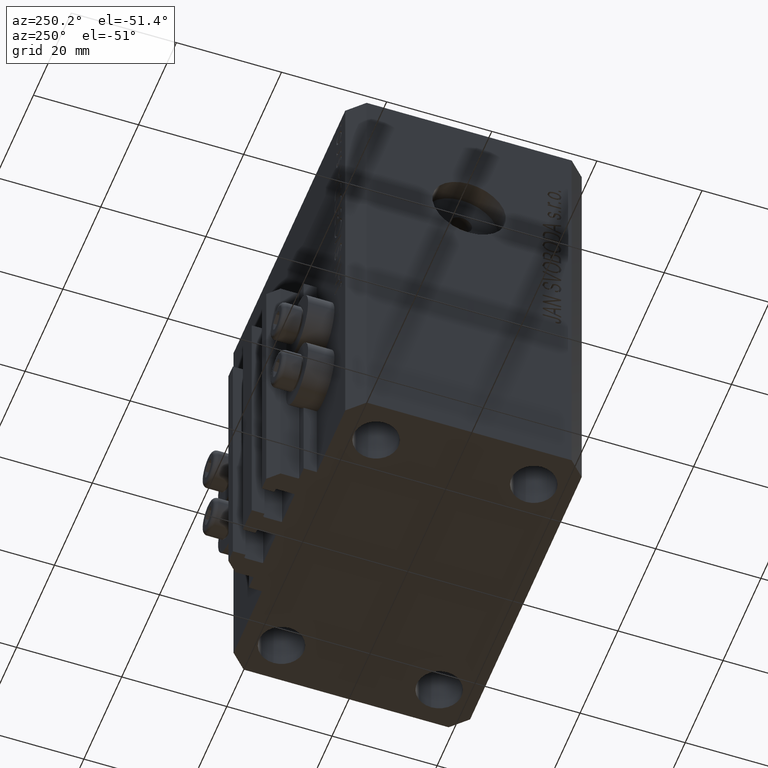
[diagram: clean part render]
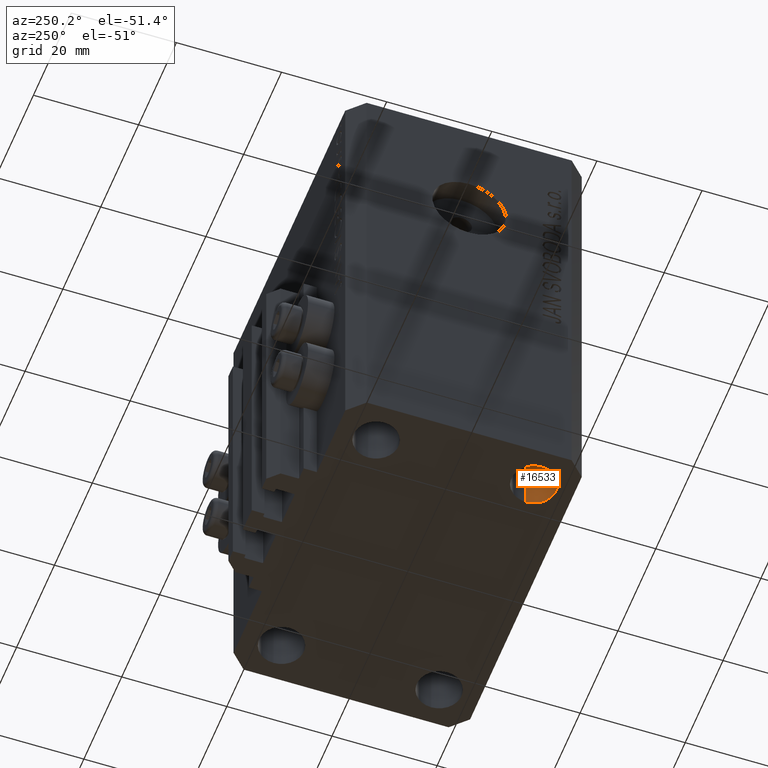
[diagram: same view with one face highlighted and labeled with its STEP entity id]
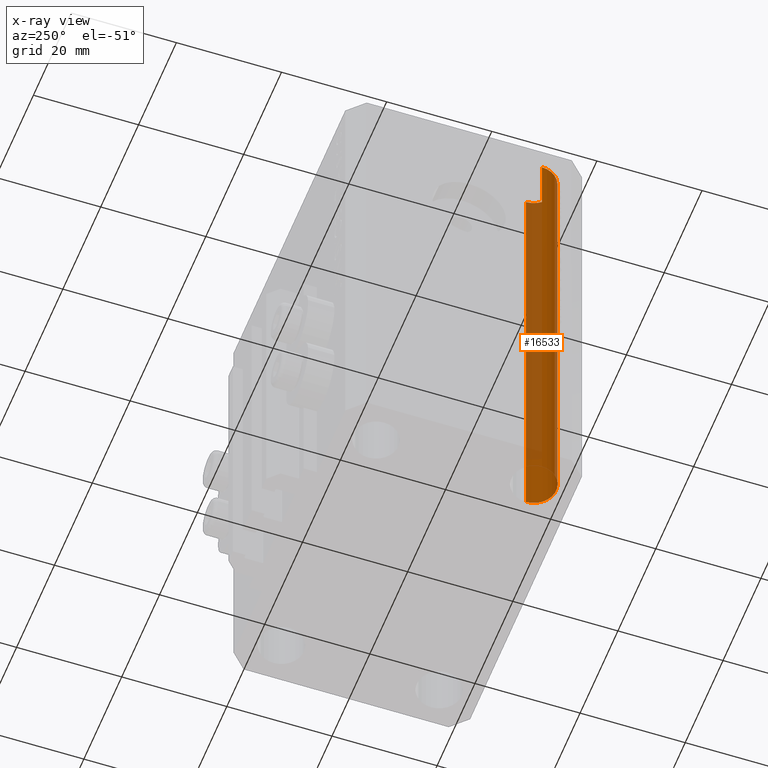
[diagram: x-ray of the same camera — body ghosted, the highlighted face saturated]
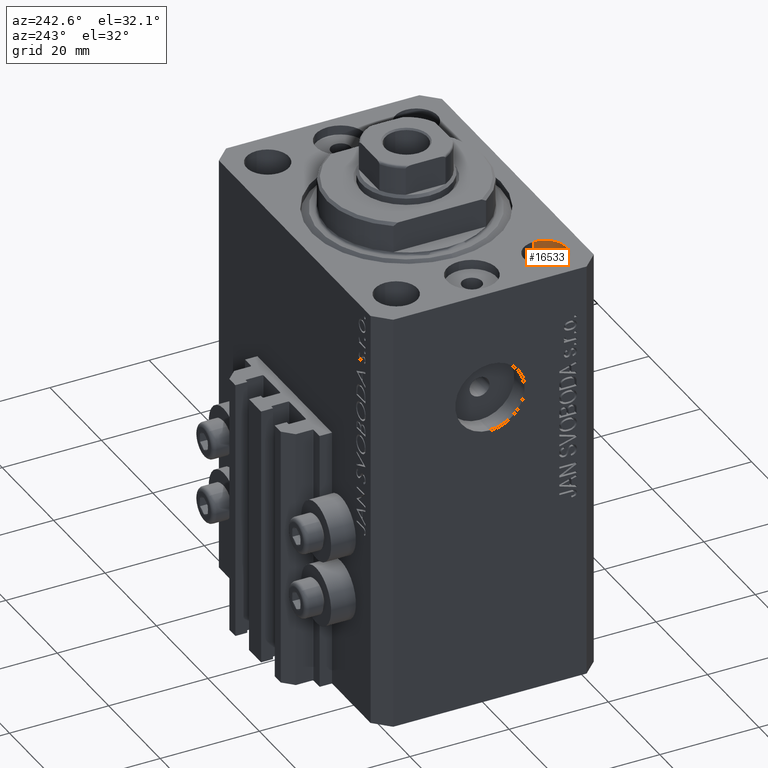
[diagram: same view with one face highlighted and labeled with its STEP entity id]
A machine part, auxiliary view. The second image highlights one B-rep face of the part: STEP entity #16533.
The next image is the same camera in x-ray: the body ghosted, the highlighted face saturated — about 42% of this face is hidden behind the body in this view.
A second angle (auxiliary view) of the same face is appended — the face is thin or edge-on in the first view.
In plain terms, the highlighted cylindrical surface (edge-blend (fillet) strip) has radius 4.25 mm, axis along (0, 0, 1).
Its self-contained STEP definition (entity closure, byte-faithful):
#1110 = CARTESIAN_POINT ( 'NONE',  ( -24.99999999999999289, -15.00000000000000355, -98.02081528028547552 ) ) ;
#1584 = DIRECTION ( 'NONE',  ( -0.000000000000000000, -0.000000000000000000, 1.000000000000000000 ) ) ;
#3021 = LINE ( 'NONE', #28346, #47237 ) ;
#4667 = AXIS2_PLACEMENT_3D ( 'NONE', #19593, #34174, #31074 ) ;
#6189 = DIRECTION ( 'NONE',  ( -0.000000000000000000, -0.000000000000000000, -1.000000000000000000 ) ) ;
#6988 = CARTESIAN_POINT ( 'NONE',  ( -20.74999999995962341, -15.00000000000000355, 0.000000000000000000 ) ) ;
#7948 = EDGE_CURVE ( 'NONE', #39170, #44569, #39226, .T. ) ;
#8258 = CYLINDRICAL_SURFACE ( 'NONE', #41725, 4.250000000040370374 ) ;
#13339 = CARTESIAN_POINT ( 'NONE',  ( -24.99999999999999289, -15.00000000000000355, -86.00000000000000000 ) ) ;
#15395 = CARTESIAN_POINT ( 'NONE',  ( -20.74999999995962341, -15.00000000000000355, -86.00000000000000000 ) ) ;
#16217 = LINE ( 'NONE', #16446, #32887 ) ;
#16446 = CARTESIAN_POINT ( 'NONE',  ( -29.25000000004036593, -15.00000000000000355, -98.02081528028547552 ) ) ;
#16533 = ADVANCED_FACE ( 'NONE', ( #41456 ), #8258, .F. ) ;
#18612 = AXIS2_PLACEMENT_3D ( 'NONE', #13339, #6189, #23620 ) ;
#19348 = VERTEX_POINT ( 'NONE', #6988 ) ;
#19593 = CARTESIAN_POINT ( 'NONE',  ( -24.99999999999999289, -15.00000000000000355, 0.000000000000000000 ) ) ;
#19864 = ORIENTED_EDGE ( 'NONE', *, *, #43125, .T. ) ;
#20453 = DIRECTION ( 'NONE',  ( -0.000000000000000000, -0.000000000000000000, 1.000000000000000000 ) ) ;
#23062 = DIRECTION ( 'NONE',  ( 1.000000000000000000, 0.000000000000000000, 0.000000000000000000 ) ) ;
#23071 = EDGE_LOOP ( 'NONE', ( #25031, #44300, #19864, #26257 ) ) ;
#23620 = DIRECTION ( 'NONE',  ( 1.000000000000000000, 0.000000000000000000, 0.000000000000000000 ) ) ;
#25031 = ORIENTED_EDGE ( 'NONE', *, *, #7948, .T. ) ;
#25278 = CIRCLE ( 'NONE', #4667, 4.250000000040370374 ) ;
#25760 = EDGE_CURVE ( 'NONE', #39170, #19348, #3021, .T. ) ;
#26257 = ORIENTED_EDGE ( 'NONE', *, *, #25760, .F. ) ;
#27018 = VERTEX_POINT ( 'NONE', #33509 ) ;
#28346 = CARTESIAN_POINT ( 'NONE',  ( -20.74999999995962341, -15.00000000000000355, -98.02081528028547552 ) ) ;
#30809 = CARTESIAN_POINT ( 'NONE',  ( -29.25000000004036593, -15.00000000000000355, -86.00000000000000000 ) ) ;
#31074 = DIRECTION ( 'NONE',  ( 1.000000000000000000, 0.000000000000000000, 0.000000000000000000 ) ) ;
#32887 = VECTOR ( 'NONE', #38191, 1000.000000000000000 ) ;
#33509 = CARTESIAN_POINT ( 'NONE',  ( -29.25000000004036593, -15.00000000000000355, 0.000000000000000000 ) ) ;
#34174 = DIRECTION ( 'NONE',  ( 0.000000000000000000, 0.000000000000000000, 1.000000000000000000 ) ) ;
#38191 = DIRECTION ( 'NONE',  ( -0.000000000000000000, -0.000000000000000000, 1.000000000000000000 ) ) ;
#39170 = VERTEX_POINT ( 'NONE', #15395 ) ;
#39226 = CIRCLE ( 'NONE', #18612, 4.250000000040370374 ) ;
#41456 = FACE_OUTER_BOUND ( 'NONE', #23071, .T. ) ;
#41725 = AXIS2_PLACEMENT_3D ( 'NONE', #1110, #1584, #23062 ) ;
#43125 = EDGE_CURVE ( 'NONE', #27018, #19348, #25278, .T. ) ;
#43877 = EDGE_CURVE ( 'NONE', #44569, #27018, #16217, .T. ) ;
#44300 = ORIENTED_EDGE ( 'NONE', *, *, #43877, .T. ) ;
#44569 = VERTEX_POINT ( 'NONE', #30809 ) ;
#47237 = VECTOR ( 'NONE', #20453, 1000.000000000000000 ) ;